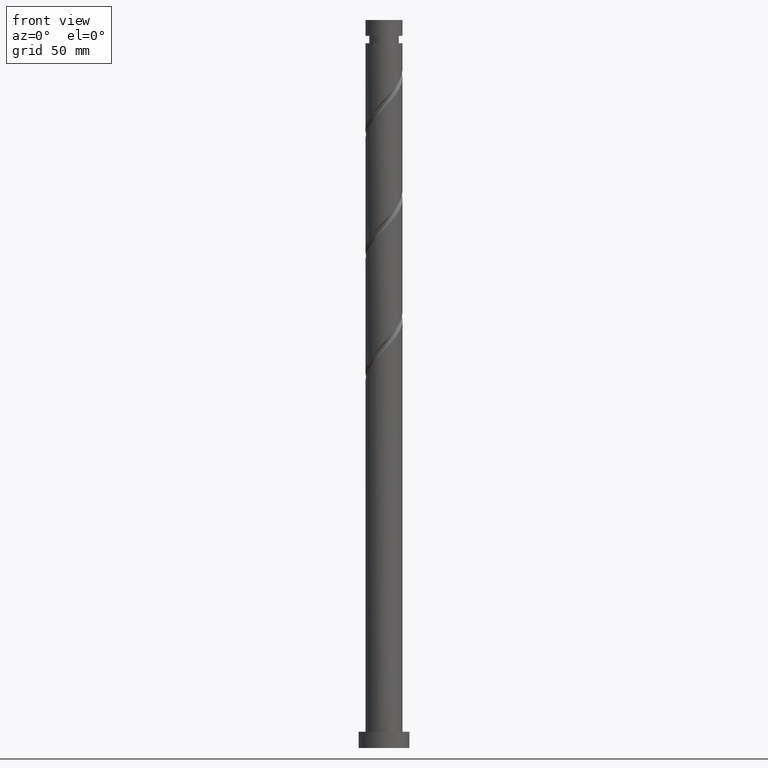
[diagram: clean part render]
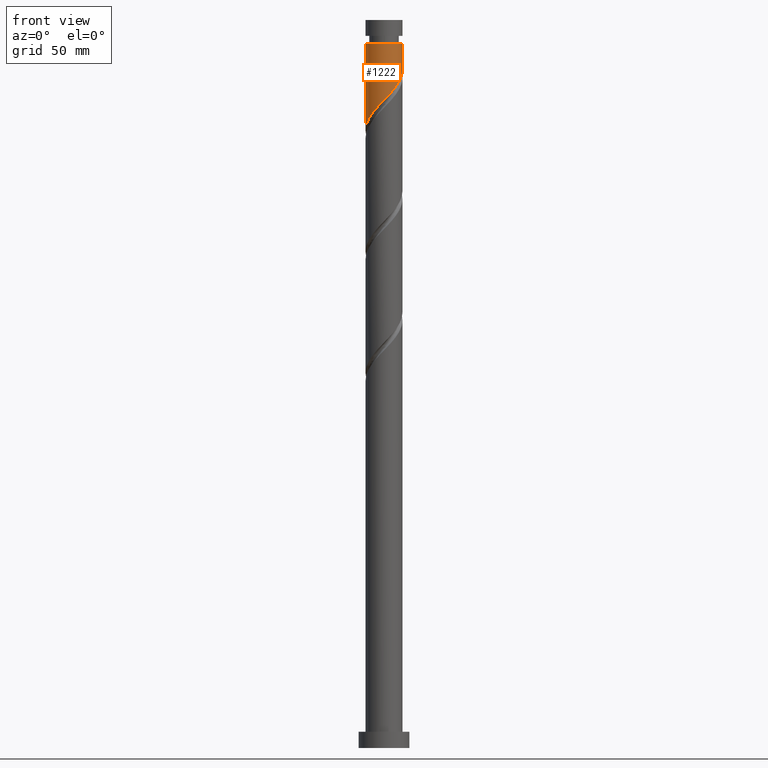
[diagram: same view with one face highlighted and labeled with its STEP entity id]
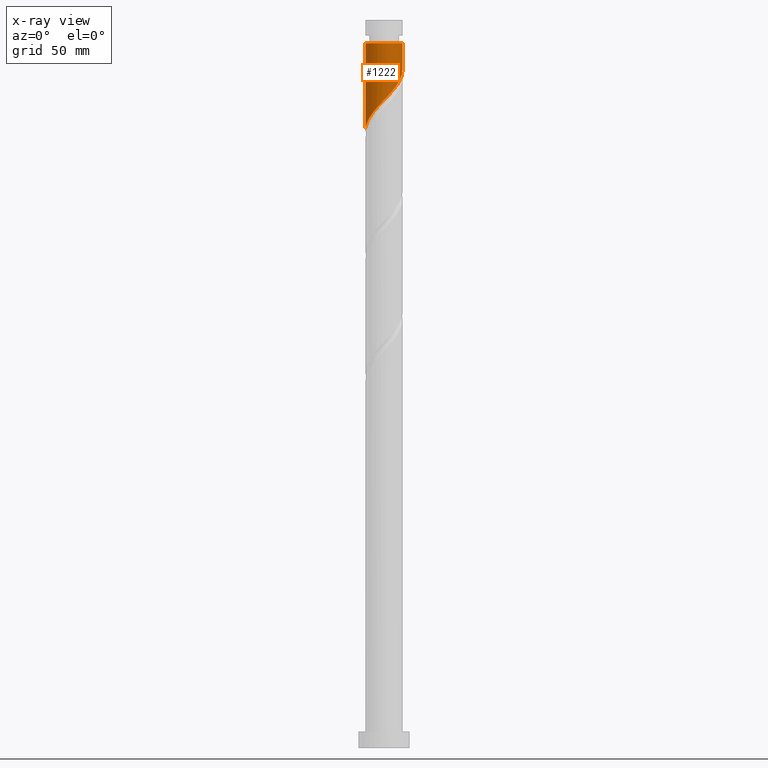
[diagram: x-ray of the same camera — body ghosted, the highlighted face saturated]
A machine part, front view. The second image highlights one B-rep face of the part: STEP entity #1222.
The next image is the same camera in x-ray: the body ghosted, the highlighted face saturated — about 0% of this face is hidden behind the body in this view.
In plain terms, the highlighted cylindrical surface (edge-blend (fillet) strip) has radius 8 mm, axis along (-0, -0, -1).
Its self-contained STEP definition (entity closure, byte-faithful):
#3 = CARTESIAN_POINT ( 'NONE',  ( -8.000000000000000000, -2.537381498659479741E-16, 267.2607200907828542 ) ) ;
#16 =( BOUNDED_CURVE ( )  B_SPLINE_CURVE ( 2, ( #1591, #843, #1442, #855, #660, #1842, #825, #507, #1701, #1409, #359, #1019, #559, #753, #1333, #1614, #1453, #733, #1790, #889, #1604, #1781, #1887, #119, #1347, #1314, #1648, #1919, #1755, #1767, #3 ),
 .UNSPECIFIED., .F., .T. ) 
 B_SPLINE_CURVE_WITH_KNOTS ( ( 3, 2, 2, 2, 2, 2, 2, 2, 2, 2, 2, 2, 2, 2, 2, 3 ),
 ( 0.3045303401299219725, 0.3125000000000000000, 0.3214285714285714524, 0.3303571428571428492, 0.3392857142857143016, 0.3482142857142856984, 0.3571428571428571508, 0.3660714285714285476, 0.3750000000000000000, 0.3839285714285714524, 0.3928571428571428492, 0.4017857142857143016, 0.4107142857142856984, 0.4196428571428571508, 0.4285714285714285476, 0.4295303401299220281 ),
 .UNSPECIFIED. ) 
 CURVE ( )  GEOMETRIC_REPRESENTATION_ITEM ( )  RATIONAL_B_SPLINE_CURVE ( ( 0.9079949616361919773, 0.9039886423360550260, 0.9090909090909216062, 0.9033747362665968117, 0.9090909090909216062, 0.9033747362665968117, 0.9090909090909216062, 0.9033747362665968117, 0.9090909090909216062, 0.9033747362665968117, 0.9090909090909216062, 0.9033747362665968117, 0.9090909090909216062, 0.9033747362665968117, 0.9090909090909216062, 0.9033747362665968117, 0.9090909090909216062, 0.9033747362665968117, 0.9090909090909216062, 0.9033747362665968117, 0.9090909090909216062, 0.9033747362665968117, 0.9090909090909216062, 0.9033747362665968117, 0.9090909090909216062, 0.9033747362665968117, 0.9090909090909216062, 0.9033747362665968117, 0.9090909090909216062, 0.9084770030214633918, 0.9079949616361917553 ) ) 
 REPRESENTATION_ITEM ( '' )  );
#54 = CARTESIAN_POINT ( 'NONE',  ( 8.000000000000000000, 9.797174393178825657E-16, 315.0000000000000000 ) ) ;
#119 = CARTESIAN_POINT ( 'NONE',  ( -6.711618193336553517, -4.445972725462986830, 272.1487030128766946 ) ) ;
#168 = VERTEX_POINT ( 'NONE', #748 ) ;
#179 = CIRCLE ( 'NONE', #237, 7.999999999999976019 ) ;
#237 = AXIS2_PLACEMENT_3D ( 'NONE', #260, #1626, #419 ) ;
#260 = CARTESIAN_POINT ( 'NONE',  ( 0.000000000000000000, 0.000000000000000000, 304.9612030128767515 ) ) ;
#359 = CARTESIAN_POINT ( 'NONE',  ( 3.643500041788254151, -7.122142054571012793, 284.3362030128767515 ) ) ;
#387 = CARTESIAN_POINT ( 'NONE',  ( -8.000000000000000000, -2.537381498659479741E-16, 267.2607200907828542 ) ) ;
#419 = DIRECTION ( 'NONE',  ( -1.000000000000000000, 0.000000000000000000, 0.000000000000000000 ) ) ;
#470 = DIRECTION ( 'NONE',  ( -0.000000000000000000, -0.000000000000000000, -1.000000000000000000 ) ) ;
#507 = CARTESIAN_POINT ( 'NONE',  ( 5.827978455592403684, -5.554021909376825050, 287.1487030128766946 ) ) ;
#559 = CARTESIAN_POINT ( 'NONE',  ( 1.967324187022323700, -7.754330115693872649, 282.4612030128767515 ) ) ;
#566 = CYLINDRICAL_SURFACE ( 'NONE', #1244, 8.000000000000000000 ) ;
#599 = VERTEX_POINT ( 'NONE', #387 ) ;
#625 = VECTOR ( 'NONE', #1840, 1000.000000000000000 ) ;
#635 = EDGE_CURVE ( 'NONE', #1102, #599, #16, .T. ) ;
#660 = CARTESIAN_POINT ( 'NONE',  ( 7.289185977457873555, -3.296629761746309395, 289.9612030128766946 ) ) ;
#663 = CARTESIAN_POINT ( 'NONE',  ( 7.999999999999976019, 9.797174393178809880E-16, 304.9612030128767515 ) ) ;
#733 = CARTESIAN_POINT ( 'NONE',  ( -2.475335748187464269, -7.660626944476033096, 277.7737030128767515 ) ) ;
#748 = CARTESIAN_POINT ( 'NONE',  ( -7.999999999999976019, 0.000000000000000000, 304.9612030128767515 ) ) ;
#753 = CARTESIAN_POINT ( 'NONE',  ( 1.093621015931126594, -7.975994315582275007, 281.5237030128767515 ) ) ;
#771 = EDGE_CURVE ( 'NONE', #1760, #168, #179, .T. ) ;
#825 = CARTESIAN_POINT ( 'NONE',  ( 6.372861733016058849, -4.835972842340986233, 288.0862030128768652 ) ) ;
#843 = CARTESIAN_POINT ( 'NONE',  ( 8.000000000000001776, -0.8040302522073660141, 292.6724490118191966 ) ) ;
#852 = DIRECTION ( 'NONE',  ( -1.000000000000000000, 0.000000000000000000, 0.000000000000000000 ) ) ;
#855 = CARTESIAN_POINT ( 'NONE',  ( 7.660626944476033096, -2.475335748187465157, 290.8987030128768083 ) ) ;
#862 = ORIENTED_EDGE ( 'NONE', *, *, #635, .F. ) ;
#889 = CARTESIAN_POINT ( 'NONE',  ( -4.117923775305150080, -6.917745010439714903, 275.8987030128767515 ) ) ;
#895 = CARTESIAN_POINT ( 'NONE',  ( 0.000000000000000000, 0.000000000000000000, 315.0000000000000000 ) ) ;
#965 = EDGE_CURVE ( 'NONE', #168, #599, #968, .T. ) ;
#968 = LINE ( 'NONE', #1288, #625 ) ;
#998 = FACE_OUTER_BOUND ( 'NONE', #1881, .T. ) ;
#1019 = CARTESIAN_POINT ( 'NONE',  ( 2.841027358113521473, -7.532665915805472956, 283.3987030128768083 ) ) ;
#1102 = VERTEX_POINT ( 'NONE', #1847 ) ;
#1166 = DIRECTION ( 'NONE',  ( -0.000000000000000000, -0.000000000000000000, -1.000000000000000000 ) ) ;
#1222 = ADVANCED_FACE ( 'NONE', ( #998 ), #566, .T. ) ;
#1231 = ORIENTED_EDGE ( 'NONE', *, *, #965, .T. ) ;
#1244 = AXIS2_PLACEMENT_3D ( 'NONE', #895, #1166, #852 ) ;
#1288 = CARTESIAN_POINT ( 'NONE',  ( -8.000000000000000000, 0.000000000000000000, 315.0000000000000000 ) ) ;
#1314 = CARTESIAN_POINT ( 'NONE',  ( -7.532665915805472956, -2.841027358113521473, 270.2737030128768652 ) ) ;
#1333 = CARTESIAN_POINT ( 'NONE',  ( 0.1924984826887017053, -7.997683685553119481, 280.5862030128769220 ) ) ;
#1347 = CARTESIAN_POINT ( 'NONE',  ( -7.122142054571012793, -3.643500041788254595, 271.2112030128767515 ) ) ;
#1409 = CARTESIAN_POINT ( 'NONE',  ( 4.445972725462986830, -6.711618193336554405, 285.2737030128767515 ) ) ;
#1442 = CARTESIAN_POINT ( 'NONE',  ( 7.839999999999999858, -1.591979899370594920, 291.8362030128768083 ) ) ;
#1453 = CARTESIAN_POINT ( 'NONE',  ( -1.591979899370594476, -7.839999999999999858, 278.7112030128767515 ) ) ;
#1499 = EDGE_CURVE ( 'NONE', #1760, #1102, #1813, .T. ) ;
#1504 = ORIENTED_EDGE ( 'NONE', *, *, #771, .T. ) ;
#1591 = CARTESIAN_POINT ( 'NONE',  ( 8.000000000000000000, -6.716598084686858776E-16, 293.5107200907827973 ) ) ;
#1604 = CARTESIAN_POINT ( 'NONE',  ( -4.835972842340985345, -6.372861733016058849, 274.9612030128768083 ) ) ;
#1614 = CARTESIAN_POINT ( 'NONE',  ( -0.7086240505537237944, -8.019373055523969285, 279.6487030128766946 ) ) ;
#1622 = ORIENTED_EDGE ( 'NONE', *, *, #1499, .F. ) ;
#1626 = DIRECTION ( 'NONE',  ( -0.000000000000000000, -0.000000000000000000, -1.000000000000000000 ) ) ;
#1648 = CARTESIAN_POINT ( 'NONE',  ( -7.754330115693874426, -1.967324187022324145, 269.3362030128767515 ) ) ;
#1701 = CARTESIAN_POINT ( 'NONE',  ( 5.136975590527694813, -6.132820051356687507, 286.2112030128768083 ) ) ;
#1755 = CARTESIAN_POINT ( 'NONE',  ( -7.997683685553119481, -0.1924984826887021772, 267.4612030128768083 ) ) ;
#1760 = VERTEX_POINT ( 'NONE', #663 ) ;
#1767 = CARTESIAN_POINT ( 'NONE',  ( -8.000000000000000000, -0.09626317733112338404, 267.3610827790079156 ) ) ;
#1781 = CARTESIAN_POINT ( 'NONE',  ( -5.554021909376825050, -5.827978455592403684, 274.0237030128766946 ) ) ;
#1790 = CARTESIAN_POINT ( 'NONE',  ( -3.296629761746308063, -7.289185977457873555, 276.8362030128766378 ) ) ;
#1813 = LINE ( 'NONE', #54, #1888 ) ;
#1840 = DIRECTION ( 'NONE',  ( -0.000000000000000000, -0.000000000000000000, -1.000000000000000000 ) ) ;
#1842 = CARTESIAN_POINT ( 'NONE',  ( 6.917745010439713127, -4.117923775305150080, 289.0237030128767515 ) ) ;
#1847 = CARTESIAN_POINT ( 'NONE',  ( 8.000000000000000000, -6.716598084686857790E-16, 293.5107200907827973 ) ) ;
#1881 = EDGE_LOOP ( 'NONE', ( #1622, #1504, #1231, #862 ) ) ;
#1887 = CARTESIAN_POINT ( 'NONE',  ( -6.132820051356686619, -5.136975590527694813, 273.0862030128767515 ) ) ;
#1888 = VECTOR ( 'NONE', #470, 1000.000000000000000 ) ;
#1919 = CARTESIAN_POINT ( 'NONE',  ( -7.975994315582275007, -1.093621015931127483, 268.3987030128766946 ) ) ;